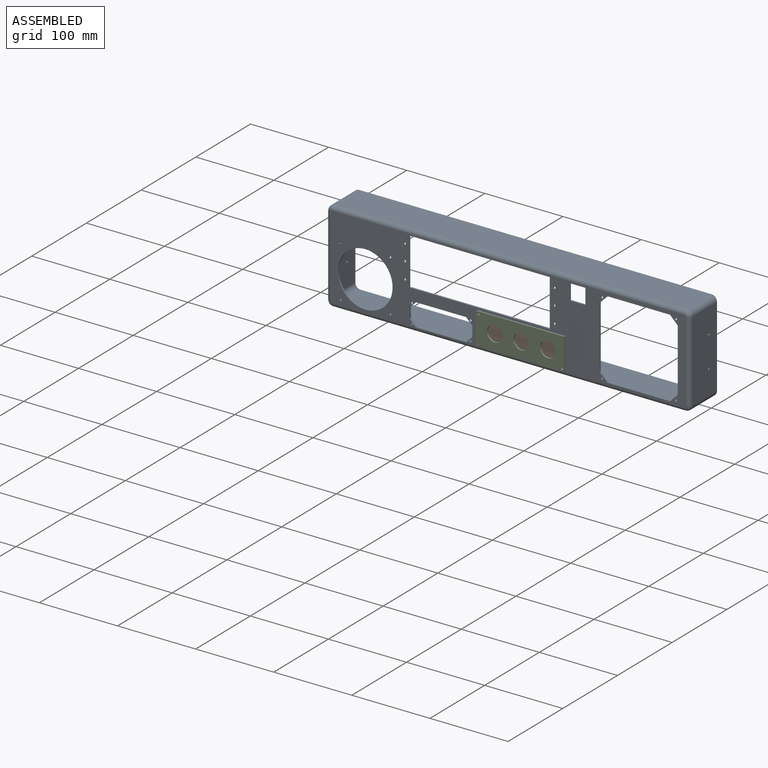
[diagram: assembled view]
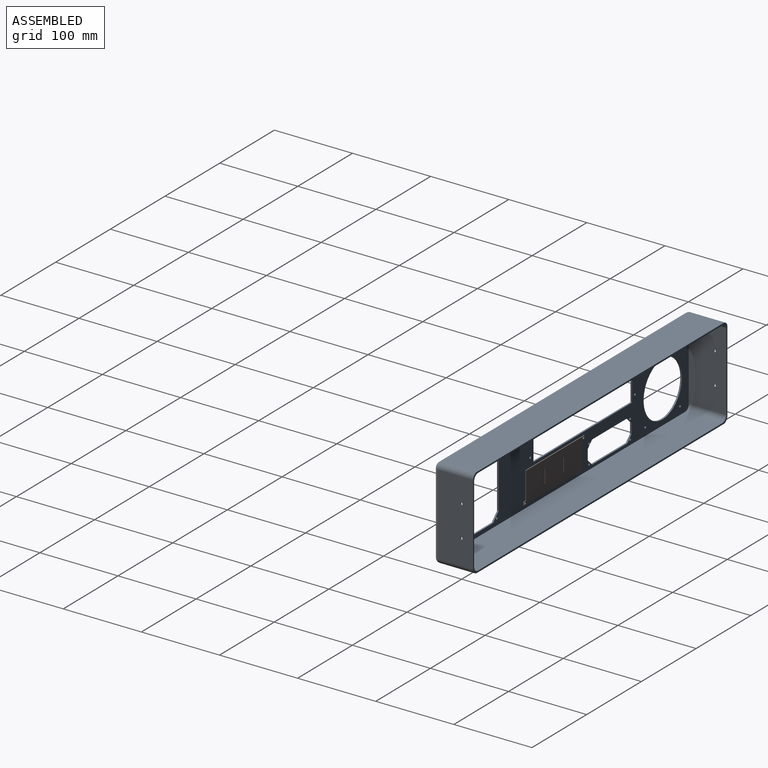
[diagram: assembled view, second angle]
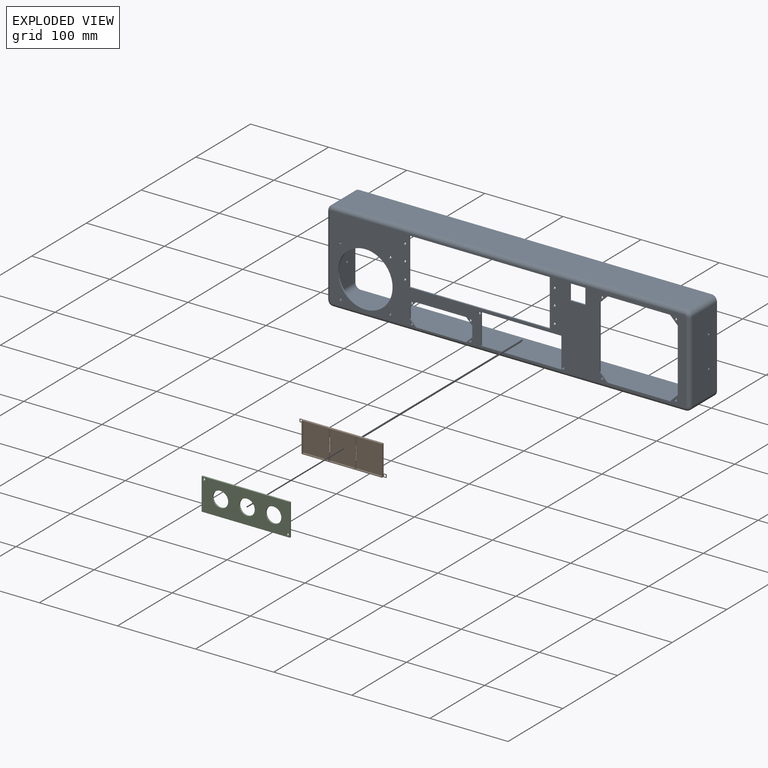
[diagram: exploded view]
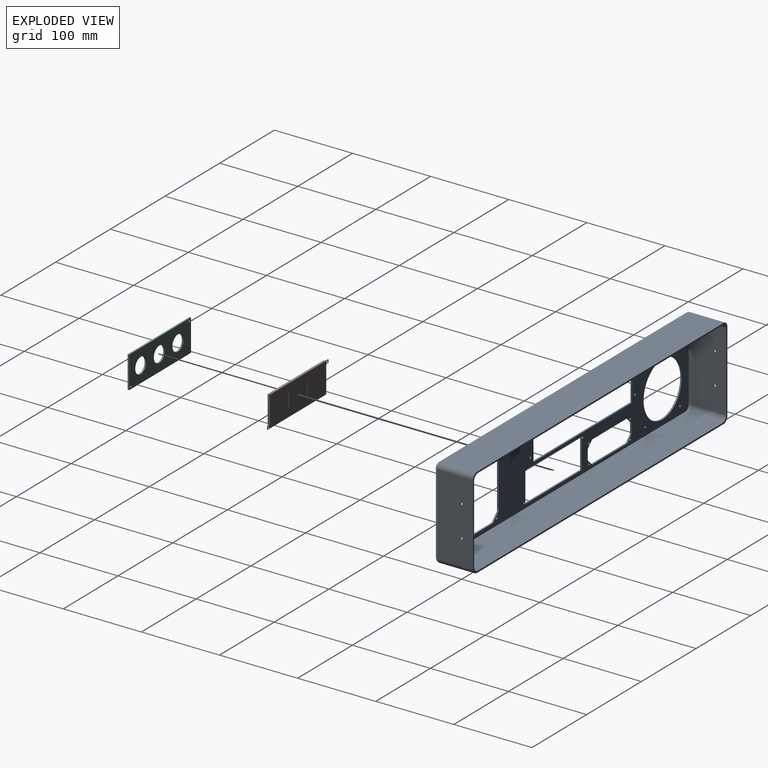
[diagram: exploded view, second angle]
ASSEMBLY  parts=3 mates=2
PART A: 80 faces, bbox 465x50x117 mm
  f0: plane 103x45mm, normal (-1,0,0), area 4620.9mm2, adj f5,f15,f18,f73,f78,f79
  f1: plane 451x45mm, normal (0,0,-1), area 20295mm2, adj f5,f15,f16,f74
  f2: plane 103x45mm, normal (1,0,0), area 4620.9mm2, adj f5,f16,f17,f70,f76,f77
  f3: plane 451x45mm, normal (0,0,1), area 20295mm2, adj f5,f17,f18,f69
  f4: plane 455x107mm, normal (0,-1,0), area 17471.7mm2, adj f19,f20,f21,f22,f23,f24,f25,f26
  f5: plane 465x117mm, normal (0,1,0), area 2312mm2, adj f0,f1,f2,f3,f6,f7,f8,f9
  f6: plane 99x48mm, normal (1,0,0), area 4737.9mm2, adj f5,f10,f12,f14,f78,f79
  f7: plane 447x48mm, normal (0,0,1), area 21456mm2, adj f5,f10,f13,f14
  f8: plane 99x48mm, normal (-1,0,0), area 4737.9mm2, adj f5,f10,f11,f13,f76,f77
  f9: plane 447x48mm, normal (0,0,-1), area 21456mm2, adj f5,f10,f11,f12
  f10: plane 461x113mm, normal (0,1,0), area 20841.1mm2, adj f6,f7,f8,f9,f11,f12,f13,f14
  f11: cylinder r=7mm len=48mm, axis (0,-1,0), area 527.8mm2, adj f5,f8,f9,f10
  f12: cylinder r=7mm len=48mm, axis (0,1,0), area 527.8mm2, adj f5,f6,f9,f10
  f13: cylinder r=7mm len=48mm, axis (0,1,0), area 527.8mm2, adj f5,f7,f8,f10
  f14: cylinder r=7mm len=48mm, axis (0,-1,0), area 527.8mm2, adj f5,f6,f7,f10
  f15: cylinder r=7mm len=45mm, axis (0,1,0), area 494.8mm2, adj f0,f1,f5,f75
  f16: cylinder r=7mm len=45mm, axis (0,-1,0), area 494.8mm2, adj f1,f2,f5,f72
  f17: cylinder r=7mm len=45mm, axis (0,1,0), area 494.8mm2, adj f2,f3,f5,f68
  f18: cylinder r=7mm len=45mm, axis (0,-1,0), area 494.8mm2, adj f0,f3,f5,f71
  f19: plane 60x2mm, normal (1,0,0), area 120mm2, adj f4,f10,f20,f22
  f20: plane 180x2mm, normal (0,0,1), area 360mm2, adj f4,f10,f19,f21
  f21: plane 60x2mm, normal (-1,0,0), area 120mm2, adj f4,f10,f20,f22
  f22: plane 180x2mm, normal (0,0,-1), area 360mm2, adj f4,f10,f19,f21
  f23: cylinder r=1.5mm len=3mm, axis (0,-1,0), area 18.8mm2, adj f4,f10
  f24: cylinder r=1.5mm len=3mm, axis (0,-1,0), area 18.8mm2, adj f4,f10
  f25: cylinder r=1.5mm len=3mm, axis (0,-1,0), area 18.8mm2, adj f4,f10
  f26: cylinder r=1.5mm len=3mm, axis (0,-1,0), area 18.8mm2, adj f4,f10
  f27: cylinder r=1.5mm len=3mm, axis (0,-1,0), area 18.8mm2, adj f4,f10
  f28: cylinder r=1.5mm len=3mm, axis (0,-1,0), area 18.8mm2, adj f4,f10
  f29: cylinder r=1.5mm len=3mm, axis (0,-1,0), area 18.8mm2, adj f4,f10
  f30: cylinder r=1.5mm len=3mm, axis (0,-1,0), area 18.8mm2, adj f4,f10
  f31: plane 39x2mm, normal (1,0,0), area 78mm2, adj f4,f10,f32,f34
  f32: plane 103x2mm, normal (0,0,1), area 206mm2, adj f4,f10,f31,f33
  f33: plane 39x2mm, normal (-1,0,0), area 78mm2, adj f4,f10,f32,f34
  f34: plane 103x2mm, normal (0,0,-1), area 206mm2, adj f4,f10,f31,f33
  f35: plane 7.78x7.78mm, normal (0.71,0,0.71), area 22mm2, adj f4,f10,f36,f42
  f36: plane 64.44x2mm, normal (0,0,1), area 128.9mm2, adj f4,f10,f35,f37
  f37: plane 7.78x7.78mm, normal (-0.71,0,0.71), area 22mm2, adj f4,f10,f36,f38
  f38: plane 13.44x2mm, normal (-1,0,0), area 26.9mm2, adj f4,f10,f37,f39
  f39: plane 7.78x7.78mm, normal (-0.71,0,-0.71), area 22mm2, adj f4,f10,f38,f40
  f40: plane 64.44x2mm, normal (0,0,-1), area 128.9mm2, adj f4,f10,f39,f41
  f41: plane 7.78x7.78mm, normal (0.71,0,-0.71), area 22mm2, adj f4,f10,f40,f42
  f42: plane 13.44x2mm, normal (1,0,0), area 26.9mm2, adj f4,f10,f35,f41
  f43: cylinder r=1.5mm len=3mm, axis (0,-1,0), area 18.8mm2, adj f4,f10
  f44: cylinder r=1.5mm len=3mm, axis (0,-1,0), area 18.8mm2, adj f4,f10
  f45: cylinder r=1.5mm len=3mm, axis (0,-1,0), area 18.8mm2, adj f4,f10
  f46: cylinder r=1.5mm len=3mm, axis (0,-1,0), area 18.8mm2, adj f4,f10
  f47: cylinder r=1.5mm len=3mm, axis (0,-1,0), area 18.8mm2, adj f4,f10
  f48: plane 9.9x9.9mm, normal (0.71,0,0.71), area 28mm2, adj f4,f10,f49,f55
  f49: plane 80.2x2mm, normal (0,0,1), area 160.4mm2, adj f4,f10,f48,f50
  f50: plane 9.9x9.9mm, normal (-0.71,0,0.71), area 28mm2, adj f4,f10,f49,f51
  f51: plane 80.2x2mm, normal (-1,0,0), area 160.4mm2, adj f4,f10,f50,f52
  f52: plane 9.9x9.9mm, normal (-0.71,0,-0.71), area 28mm2, adj f4,f10,f51,f53
  f53: plane 80.2x2mm, normal (0,0,-1), area 160.4mm2, adj f4,f10,f52,f54
  f54: plane 9.9x9.9mm, normal (0.71,0,-0.71), area 28mm2, adj f4,f10,f53,f55
  f55: plane 80.2x2mm, normal (1,0,0), area 160.4mm2, adj f4,f10,f48,f54
  f56: plane 20x2mm, normal (1,0,0), area 40mm2, adj f4,f10,f57,f59
  f57: plane 20x2mm, normal (0,0,1), area 40mm2, adj f4,f10,f56,f58
  f58: plane 20x2mm, normal (-1,0,0), area 40mm2, adj f4,f10,f57,f59
  f59: plane 20x2mm, normal (0,0,-1), area 40mm2, adj f4,f10,f56,f58
  f60: cylinder r=1.5mm len=3mm, axis (0,-1,0), area 18.8mm2, adj f4,f10
  f61: cylinder r=35mm len=70mm, axis (0,-1,0), area 439.8mm2, adj f4,f10
  f62: cylinder r=1.5mm len=3mm, axis (0,-1,0), area 18.8mm2, adj f4,f10
  f63: cylinder r=1.5mm len=3mm, axis (0,-1,0), area 18.8mm2, adj f4,f10
  f64: cylinder r=1.5mm len=3mm, axis (0,-1,0), area 18.8mm2, adj f4,f10
  f65: cylinder r=1.5mm len=3mm, axis (0,-1,0), area 18.8mm2, adj f4,f10
  f66: cylinder r=1.5mm len=3mm, axis (0,-1,0), area 18.8mm2, adj f4,f10
  f67: cylinder r=1.5mm len=3mm, axis (0,-1,0), area 18.8mm2, adj f4,f10
  f68: torus R=2mm, axis (0,-1,0), area 63.9mm2, adj f4,f17,f69,f70
  f69: cylinder r=5mm len=451mm, axis (1,0,0), area 3542.1mm2, adj f3,f4,f68,f71
  f70: cylinder r=5mm len=103mm, axis (0,0,-1), area 809mm2, adj f2,f4,f68,f72
  f71: torus R=2mm, axis (0,-1,0), area 63.9mm2, adj f4,f18,f69,f73
  f72: torus R=2mm, axis (0,-1,0), area 63.9mm2, adj f4,f16,f70,f74
  f73: cylinder r=5mm len=103mm, axis (0,0,1), area 809mm2, adj f0,f4,f71,f75
  f74: cylinder r=5mm len=451mm, axis (-1,0,0), area 3542.1mm2, adj f1,f4,f72,f75
  f75: torus R=2mm, axis (0,-1,0), area 63.9mm2, adj f4,f15,f73,f74
  f76: cylinder r=1.5mm len=3mm, axis (-1,0,0), area 18.8mm2, adj f2,f8
  f77: cylinder r=1.5mm len=3mm, axis (-1,0,0), area 18.8mm2, adj f2,f8
  f78: cylinder r=1.5mm len=3mm, axis (-1,0,0), area 18.8mm2, adj f0,f6
  f79: cylinder r=1.5mm len=3mm, axis (-1,0,0), area 18.8mm2, adj f0,f6
PART B: 41 faces, bbox 111x3x39 mm
  f0: plane 103x39mm, normal (0,-1,0), area 320mm2, adj f1,f2,f3,f4,f6,f7,f8,f9
  f1: plane 10x2mm, normal (1,0,0), area 20mm2, adj f0,f21,f22,f33
  f2: plane 10x2mm, normal (-1,0,0), area 20mm2, adj f0,f24,f27,f33
  f3: plane 10x2mm, normal (1,0,0), area 20mm2, adj f0,f24,f27,f37
  f4: plane 10x2mm, normal (-1,0,0), area 20mm2, adj f0,f29,f32,f37
  f5: plane 111x39mm, normal (0,1,0), area 4000.9mm2, adj f6,f7,f8,f9,f10,f11,f12,f14
  f6: plane 39x3mm, normal (-1,0,0), area 113mm2, adj f0,f5,f7,f9,f12,f13
  f7: plane 107x3mm, normal (0,0,-1), area 313mm2, adj f0,f5,f6,f8,f14,f17
  f8: plane 39x3mm, normal (1,0,0), area 113mm2, adj f0,f5,f7,f9,f16,f17
  f9: plane 107x3mm, normal (0,0,1), area 313mm2, adj f0,f5,f6,f8,f10,f13
  f10: plane 4x1mm, normal (-1,0,0), area 4mm2, adj f5,f9,f12,f13
  f11: cylinder r=1.5mm len=3mm, axis (0,1,0), area 9.4mm2, adj f5,f13
  f12: plane 4x1mm, normal (0,0,-1), area 4mm2, adj f5,f6,f10,f13
  f13: plane 4x4mm, normal (0,-1,0), area 8.9mm2, adj f6,f9,f10,f11,f12
  f14: plane 4x1mm, normal (1,0,0), area 4mm2, adj f5,f7,f16,f17
  f15: cylinder r=1.5mm len=3mm, axis (0,1,0), area 9.4mm2, adj f5,f17
  f16: plane 4x1mm, normal (0,0,1), area 4mm2, adj f5,f8,f14,f17
  f17: plane 4x4mm, normal (0,-1,0), area 8.9mm2, adj f7,f8,f14,f15,f16
  f18: plane 10x2mm, normal (1,0,0), area 20mm2, adj f0,f19,f22,f35
  f19: plane 33x2mm, normal (0,0,1), area 66mm2, adj f0,f18,f20,f22
  f20: plane 37x2mm, normal (-1,0,0), area 74mm2, adj f0,f19,f21,f22
  f21: plane 33x2mm, normal (0,0,-1), area 66mm2, adj f0,f1,f20,f22
  f22: plane 37x33mm, normal (0,-1,0), area 1221mm2, adj f1,f18,f19,f20,f21,f36
  f23: plane 10x2mm, normal (-1,0,0), area 20mm2, adj f0,f26,f27,f35
  f24: plane 33x2mm, normal (0,0,-1), area 66mm2, adj f0,f2,f3,f27
  f25: plane 10x2mm, normal (1,0,0), area 20mm2, adj f0,f26,f27,f39
  f26: plane 33x2mm, normal (0,0,1), area 66mm2, adj f0,f23,f25,f27
  f27: plane 37x33mm, normal (0,-1,0), area 1221mm2, adj f2,f3,f23,f24,f25,f26,f34,f40
  f28: plane 10x2mm, normal (-1,0,0), area 20mm2, adj f0,f31,f32,f39
  f29: plane 33x2mm, normal (0,0,-1), area 66mm2, adj f0,f4,f30,f32
  f30: plane 37x2mm, normal (1,0,0), area 74mm2, adj f0,f29,f31,f32
  f31: plane 33x2mm, normal (0,0,1), area 66mm2, adj f0,f28,f30,f32
  f32: plane 37x33mm, normal (0,-1,0), area 1221mm2, adj f4,f28,f29,f30,f31,f38
  f33: plane 3x1mm, normal (0,0,-1), area 3mm2, adj f0,f1,f2,f5,f34,f36
  f34: plane 17x1mm, normal (1,0,0), area 17mm2, adj f5,f27,f33,f35
  f35: plane 3x1mm, normal (0,0,1), area 3mm2, adj f0,f5,f18,f23,f34,f36
  f36: plane 17x1mm, normal (-1,0,0), area 17mm2, adj f5,f22,f33,f35
  f37: plane 3x1mm, normal (0,0,-1), area 3mm2, adj f0,f3,f4,f5,f38,f40
  f38: plane 17x1mm, normal (1,0,0), area 17mm2, adj f5,f32,f37,f39
  f39: plane 3x1mm, normal (0,0,1), area 3mm2, adj f0,f5,f25,f28,f38,f40
  f40: plane 17x1mm, normal (-1,0,0), area 17mm2, adj f5,f27,f37,f39
PART C: 11 faces, bbox 113x2x41 mm
  f0: plane 41x2mm, normal (-1,0,0), area 82mm2, adj f1,f8,f9,f10
  f1: plane 113x2mm, normal (0,0,-1), area 226mm2, adj f0,f2,f9,f10
  f2: plane 41x2mm, normal (1,0,0), area 82mm2, adj f1,f8,f9,f10
  f3: cylinder r=10mm len=20mm, axis (0,1,0), area 125.7mm2, adj f9,f10
  f4: cylinder r=10mm len=20mm, axis (0,1,0), area 125.7mm2, adj f9,f10
  f5: cylinder r=10mm len=20mm, axis (0,1,0), area 125.7mm2, adj f9,f10
  f6: cylinder r=1.5mm len=3mm, axis (0,1,0), area 18.8mm2, adj f9,f10
  f7: cylinder r=1.5mm len=3mm, axis (0,1,0), area 18.8mm2, adj f9,f10
  f8: plane 113x2mm, normal (0,0,1), area 226mm2, adj f0,f2,f9,f10
  f9: plane 113x41mm, normal (0,-1,0), area 3676.4mm2, adj f0,f1,f2,f3,f4,f5,f6,f7
  f10: plane 113x41mm, normal (0,1,0), area 3676.4mm2, adj f0,f1,f2,f3,f4,f5,f6,f7
PLACE A t=(-21.76,13.21,-20.08)mm
PLACE B t=(-233.96,-33.79,144.85)mm
PLACE C t=(-99.81,-36.79,141.8)mm
MATE fastened C.f6 <-> A.f24  axis (0,1,0) through (-71.09,-36.79,-7.47)mm
MATE fastened B.f11 <-> A.f24  axis (0,-1,0) through (-71.09,-34.79,-7.47)mm
